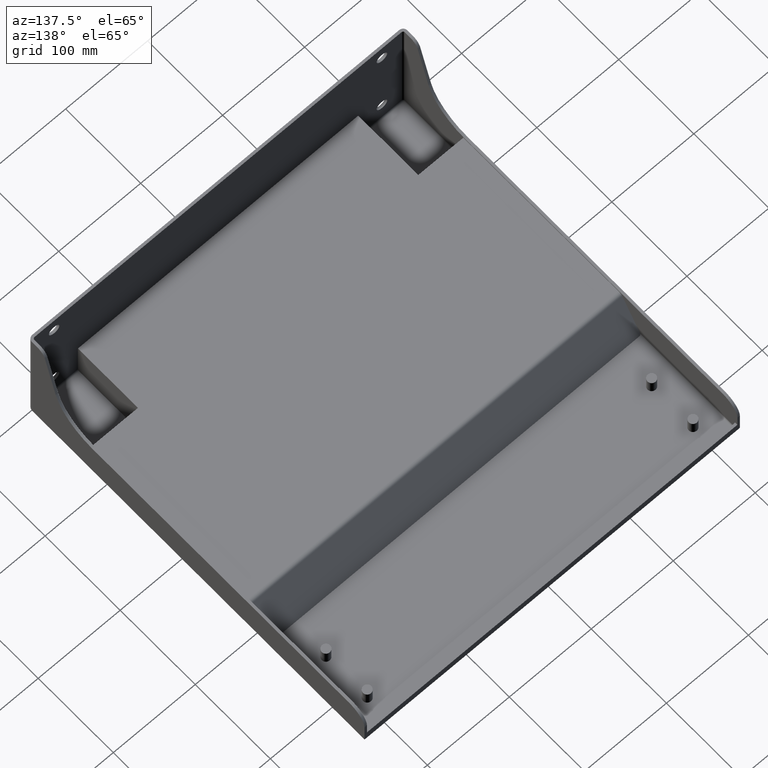
[diagram: clean part render]
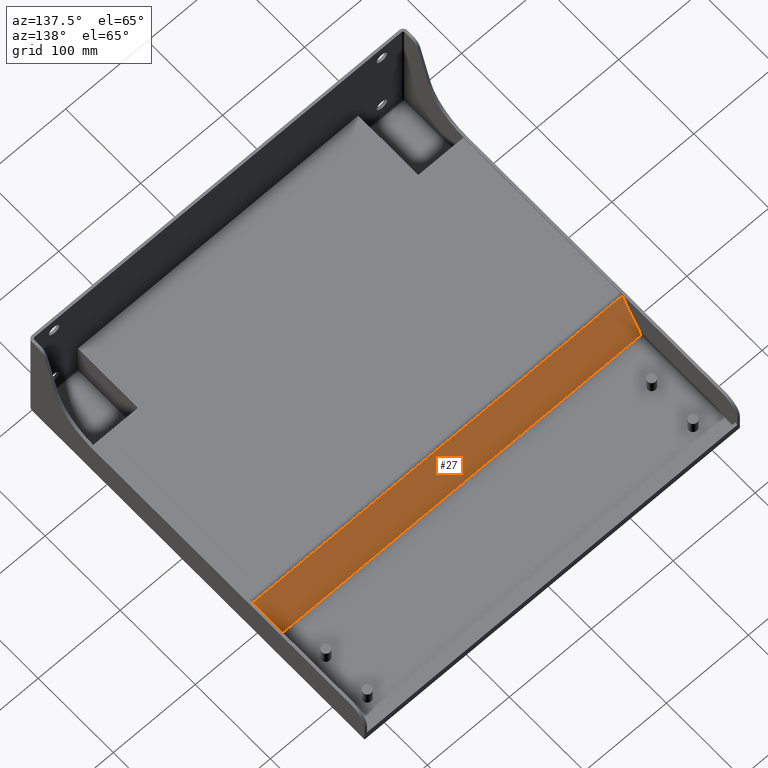
[diagram: same view with one face highlighted and labeled with its STEP entity id]
A machine part, auxiliary view. The second image highlights one B-rep face of the part: STEP entity #27.
In plain terms, the highlighted planar face has unit normal (0, 0.866, 0.5).
Its self-contained STEP definition (entity closure, byte-faithful):
#27 = ADVANCED_FACE ( 'NONE', ( #1715 ), #1965, .T. ) ;
#71 = CARTESIAN_POINT ( 'NONE',  ( 226.0000000000000000, 318.4034118443434000, 4.999999999999990200 ) ) ;
#173 = LINE ( 'NONE', #741, #176 ) ;
#176 = VECTOR ( 'NONE', #742, 1000.000000000000100 ) ;
#197 = LINE ( 'NONE', #325, #199 ) ;
#199 = VECTOR ( 'NONE', #324, 1000.000000000000200 ) ;
#268 = EDGE_CURVE ( 'NONE', #1825, #1900, #882, .T. ) ;
#269 = EDGE_CURVE ( 'NONE', #1901, #1888, #1811, .T. ) ;
#270 = EDGE_CURVE ( 'NONE', #1889, #1823, #1808, .T. ) ;
#324 = DIRECTION ( 'NONE',  ( 0.0000000000000000000, 0.4999999999999978400, -0.8660254037844399300 ) ) ;
#325 = CARTESIAN_POINT ( 'NONE',  ( -226.0000000000000000, 293.0000000000000000, 49.00000000000003600 ) ) ;
#370 = CARTESIAN_POINT ( 'NONE',  ( -226.0000000000000000, 318.4034118443434000, 5.000000000000004400 ) ) ;
#372 = CARTESIAN_POINT ( 'NONE',  ( -226.0000000000000000, 294.4433756729740700, 46.49999999999997900 ) ) ;
#435 = CARTESIAN_POINT ( 'NONE',  ( 224.0000000000000000, 319.5581123827226400, 3.000000000000002700 ) ) ;
#436 = CARTESIAN_POINT ( 'NONE',  ( -223.9999999999999700, 319.5581123827226400, 3.000000000000002700 ) ) ;
#447 = CARTESIAN_POINT ( 'NONE',  ( 226.0000000000000000, 294.4433756729740700, 46.49999999999997900 ) ) ;
#448 = CARTESIAN_POINT ( 'NONE',  ( 226.0000000000000000, 318.4034118443434000, 4.999999999999990200 ) ) ;
#491 = EDGE_CURVE ( 'NONE', #1888, #1889, #974, .T. ) ;
#545 = EDGE_CURVE ( 'NONE', #1900, #1901, #173, .T. ) ;
#559 = EDGE_CURVE ( 'NONE', #1825, #1823, #197, .T. ) ;
#616 = AXIS2_PLACEMENT_3D ( 'NONE', #1972, #1050, #1055 ) ;
#741 = CARTESIAN_POINT ( 'NONE',  ( 226.0000000000000000, 293.0000000000000000, 49.00000000000003600 ) ) ;
#742 = DIRECTION ( 'NONE',  ( 0.0000000000000000000, 0.4999999999999978400, -0.8660254037844398200 ) ) ;
#882 = LINE ( 'NONE', #1381, #885 ) ;
#885 = VECTOR ( 'NONE', #1353, 1000.000000000000000 ) ;
#974 = LINE ( 'NONE', #1136, #977 ) ;
#977 = VECTOR ( 'NONE', #1137, 1000.000000000000000 ) ;
#1050 = DIRECTION ( 'NONE',  ( 0.0000000000000000000, 0.8660254037844399300, 0.4999999999999978900 ) ) ;
#1055 = DIRECTION ( 'NONE',  ( 0.0000000000000000000, -0.4999999999999978400, 0.8660254037844398200 ) ) ;
#1136 = CARTESIAN_POINT ( 'NONE',  ( 280.9181208709840100, 319.5581123827226400, 3.000000000000002700 ) ) ;
#1137 = DIRECTION ( 'NONE',  ( -1.000000000000000000, 0.0000000000000000000, 0.0000000000000000000 ) ) ;
#1166 = CARTESIAN_POINT ( 'NONE',  ( 224.0000000000000000, 319.5581123827226400, 3.000000000000002700 ) ) ;
#1168 = CARTESIAN_POINT ( 'NONE',  ( -223.9999999999999700, 319.5581123827226400, 3.000000000000002700 ) ) ;
#1170 = CARTESIAN_POINT ( 'NONE',  ( -225.1715728752537900, 319.5581123827225300, 2.999999999999980500 ) ) ;
#1171 = CARTESIAN_POINT ( 'NONE',  ( -226.0000000000000000, 319.0798197592464500, 3.828427124746163600 ) ) ;
#1172 = CARTESIAN_POINT ( 'NONE',  ( -226.0000000000000000, 318.4034118443434000, 5.000000000000004400 ) ) ;
#1353 = DIRECTION ( 'NONE',  ( 1.000000000000000000, -0.0000000000000000000, -0.0000000000000000000 ) ) ;
#1380 = CARTESIAN_POINT ( 'NONE',  ( 225.1715728752538400, 319.5581123827225300, 2.999999999999998700 ) ) ;
#1381 = CARTESIAN_POINT ( 'NONE',  ( 226.0000000000000000, 294.4433756729740700, 46.49999999999997900 ) ) ;
#1385 = CARTESIAN_POINT ( 'NONE',  ( 226.0000000000000000, 319.0798197592464500, 3.828427124746173900 ) ) ;
#1455 = ORIENTED_EDGE ( 'NONE', *, *, #559, .F. ) ;
#1456 = ORIENTED_EDGE ( 'NONE', *, *, #268, .T. ) ;
#1457 = ORIENTED_EDGE ( 'NONE', *, *, #545, .T. ) ;
#1458 = ORIENTED_EDGE ( 'NONE', *, *, #269, .T. ) ;
#1459 = ORIENTED_EDGE ( 'NONE', *, *, #491, .T. ) ;
#1460 = ORIENTED_EDGE ( 'NONE', *, *, #270, .T. ) ;
#1652 = EDGE_LOOP ( 'NONE', ( #1455, #1456, #1457, #1458, #1459, #1460 ) ) ;
#1715 = FACE_OUTER_BOUND ( 'NONE', #1652, .T. ) ;
#1808 =( BOUNDED_CURVE ( )  B_SPLINE_CURVE ( 3, ( #1168, #1170, #1171, #1172 ),
 .UNSPECIFIED., .F., .T. ) 
 B_SPLINE_CURVE_WITH_KNOTS ( ( 4, 4 ),
 ( 3.141592653589779300, 4.712388980384679900 ),
 .UNSPECIFIED. ) 
 CURVE ( )  GEOMETRIC_REPRESENTATION_ITEM ( )  RATIONAL_B_SPLINE_CURVE ( ( 1.000000000000000000, 0.8047378541243640500, 0.8047378541243640500, 1.000000000000000000 ) ) 
 REPRESENTATION_ITEM ( '' )  );
#1811 =( BOUNDED_CURVE ( )  B_SPLINE_CURVE ( 3, ( #71, #1385, #1380, #1166 ),
 .UNSPECIFIED., .F., .T. ) 
 B_SPLINE_CURVE_WITH_KNOTS ( ( 4, 4 ),
 ( 4.712388980384704800, 6.283185307179586200 ),
 .UNSPECIFIED. ) 
 CURVE ( )  GEOMETRIC_REPRESENTATION_ITEM ( )  RATIONAL_B_SPLINE_CURVE ( ( 1.000000000000000000, 0.8047378541243684900, 0.8047378541243684900, 1.000000000000000000 ) ) 
 REPRESENTATION_ITEM ( '' )  );
#1823 = VERTEX_POINT ( 'NONE', #370 ) ;
#1825 = VERTEX_POINT ( 'NONE', #372 ) ;
#1888 = VERTEX_POINT ( 'NONE', #435 ) ;
#1889 = VERTEX_POINT ( 'NONE', #436 ) ;
#1900 = VERTEX_POINT ( 'NONE', #447 ) ;
#1901 = VERTEX_POINT ( 'NONE', #448 ) ;
#1965 = PLANE ( 'NONE',  #616 ) ;
#1972 = CARTESIAN_POINT ( 'NONE',  ( 280.9181208709840100, 293.0000000000000000, 49.00000000000003600 ) ) ;